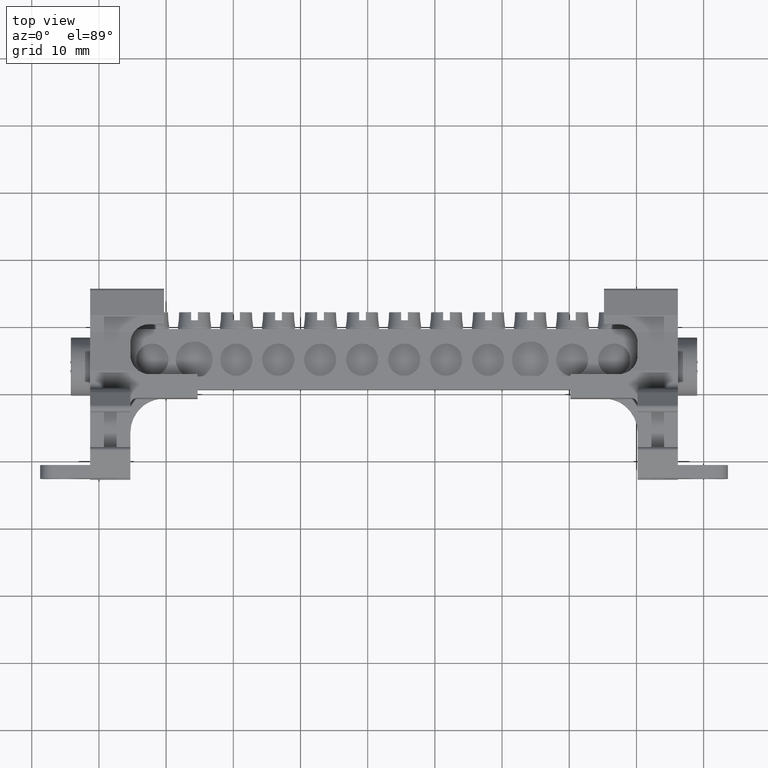
[diagram: clean part render]
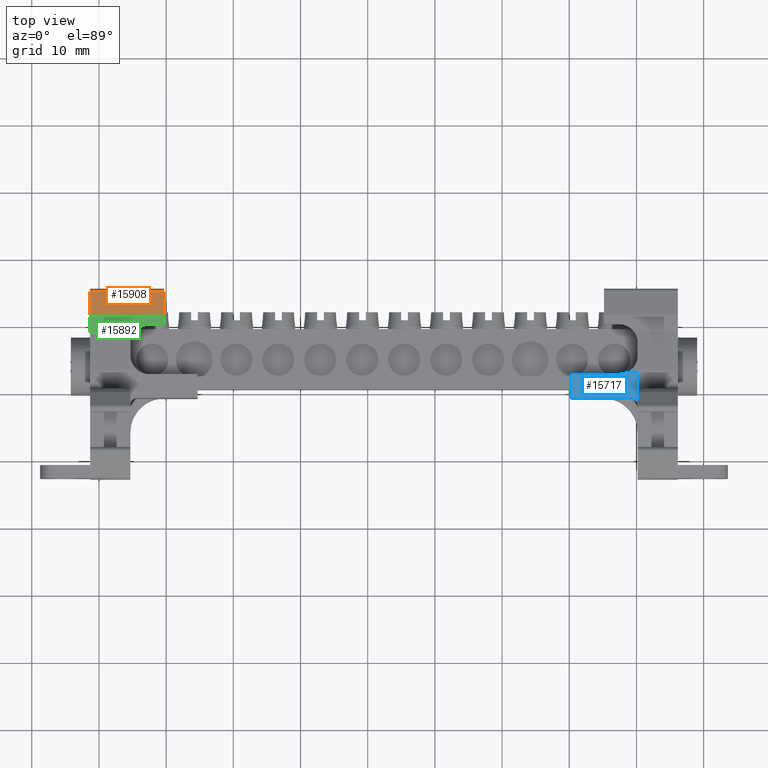
[diagram: same view with three faces highlighted in distinct colors, each labeled with its STEP entity id]
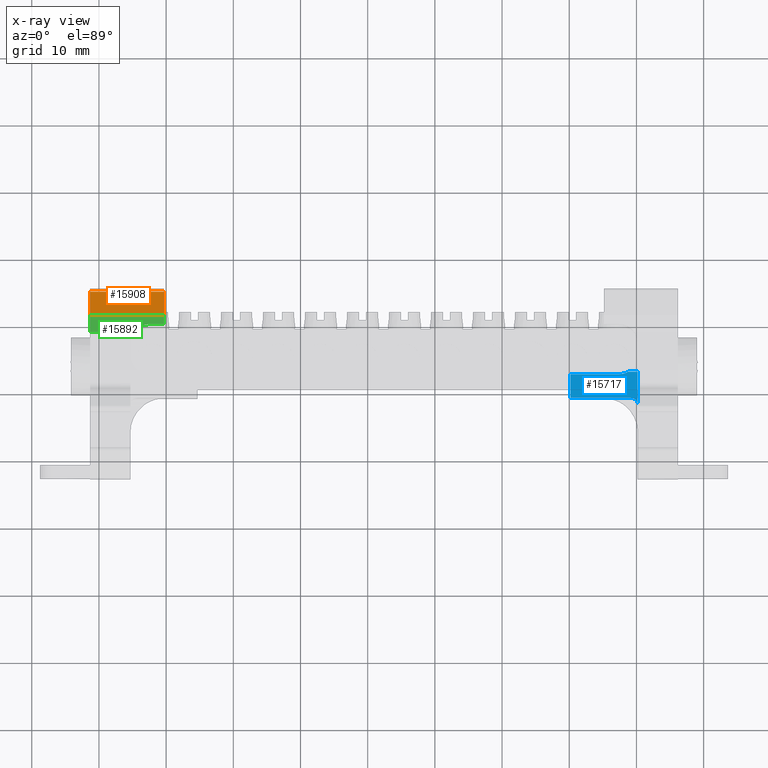
[diagram: x-ray of the same camera — body ghosted, the three highlighted faces saturated]
A machine part, top view with three faces highlighted in distinct colors.
The next image is the same camera in x-ray (body ghosted, the three faces saturated) — at least one of them is partly hidden behind the body in this view.
Their STEP definitions:

[orange] entity #15908 — the highlighted planar face has unit normal (-0, 0.2762, 0.9611).
#1280 = VECTOR ( 'NONE', #5297, 1000.000000000000000 ) ;
#1293 = VECTOR ( 'NONE', #5285, 1000.000000000000000 ) ;
#1740 = EDGE_CURVE ( 'NONE', #3983, #3984, #5250, .T. ) ;
#1748 = EDGE_CURVE ( 'NONE', #3979, #3991, #5304, .T. ) ;
#3979 = VERTEX_POINT ( 'NONE', #25395 ) ;
#3983 = VERTEX_POINT ( 'NONE', #25390 ) ;
#3984 = VERTEX_POINT ( 'NONE', #25406 ) ;
#3991 = VERTEX_POINT ( 'NONE', #25407 ) ;
#4217 = AXIS2_PLACEMENT_3D ( 'NONE', #22802, #22784, #22800 ) ;
#5250 = LINE ( 'NONE', #5277, #1293 ) ;
#5277 = CARTESIAN_POINT ( 'NONE',  ( -141.3216458143864100, -84.99019607422658900, 221.2312709053267700 ) ) ;
#5285 = DIRECTION ( 'NONE',  ( -1.000000000000000000, -1.454175152149102200E-015, -5.060196571459887600E-015 ) ) ;
#5293 = CARTESIAN_POINT ( 'NONE',  ( -141.3216458143864100, -88.47789138541249100, 222.2335481465704300 ) ) ;
#5297 = DIRECTION ( 'NONE',  ( 1.000000000000000000, 1.454175152149102200E-015, 5.060196571459887600E-015 ) ) ;
#5304 = LINE ( 'NONE', #5293, #1280 ) ;
#6095 = ORIENTED_EDGE ( 'NONE', *, *, #1748, .T. ) ;
#6102 = ORIENTED_EDGE ( 'NONE', *, *, #12886, .F. ) ;
#6109 = ORIENTED_EDGE ( 'NONE', *, *, #12932, .F. ) ;
#6149 = ORIENTED_EDGE ( 'NONE', *, *, #1740, .T. ) ;
#12886 = EDGE_CURVE ( 'NONE', #3979, #3984, #13163, .T. ) ;
#12932 = EDGE_CURVE ( 'NONE', #3983, #3991, #13331, .T. ) ;
#13163 = LINE ( 'NONE', #13176, #25936 ) ;
#13176 = CARTESIAN_POINT ( 'NONE',  ( -141.3216458143864100, -88.47789138541244800, 222.2335481465706000 ) ) ;
#13192 = DIRECTION ( 'NONE',  ( -1.529715931475186800E-014, 0.9611011415393202500, -0.2761966613335790100 ) ) ;
#13315 = CARTESIAN_POINT ( 'NONE',  ( -130.3216458143867000, -84.99019607422657400, 221.2312709053268000 ) ) ;
#13331 = LINE ( 'NONE', #13315, #26000 ) ;
#13660 = DIRECTION ( 'NONE',  ( 2.294573897212869500E-014, -0.9611011415393193600, 0.2761966613335820600 ) ) ;
#15908 = ADVANCED_FACE ( 'NONE', ( #22729 ), #22739, .T. ) ;
#17276 = EDGE_LOOP ( 'NONE', ( #6095, #6109, #6149, #6102 ) ) ;
#22729 = FACE_OUTER_BOUND ( 'NONE', #17276, .T. ) ;
#22739 = PLANE ( 'NONE',  #4217 ) ;
#22784 = DIRECTION ( 'NONE',  ( -5.264999023261283800E-015, 0.2761966613335374900, 0.9611011415393321300 ) ) ;
#22800 = DIRECTION ( 'NONE',  ( 0.0000000000000000000, -0.9611011415393320200, 0.2761966613335374300 ) ) ;
#22802 = CARTESIAN_POINT ( 'NONE',  ( -141.3216458143864100, -90.08889270818345100, 222.6965100217801400 ) ) ;
#25390 = CARTESIAN_POINT ( 'NONE',  ( -130.3216458143866700, -84.99019607422668800, 221.2312709053268500 ) ) ;
#25395 = CARTESIAN_POINT ( 'NONE',  ( -141.3216458143864100, -88.47789138541266100, 222.2335481465706000 ) ) ;
#25406 = CARTESIAN_POINT ( 'NONE',  ( -141.3216458143864400, -84.99019607422666000, 221.2312709053268000 ) ) ;
#25407 = CARTESIAN_POINT ( 'NONE',  ( -130.3216458143866100, -88.47789138541239100, 222.2335481465706000 ) ) ;
#25936 = VECTOR ( 'NONE', #13192, 999.9999999999998900 ) ;
#26000 = VECTOR ( 'NONE', #13660, 999.9999999999998900 ) ;

[blue] entity #15717 — the highlighted planar face has unit normal (-0, 0, 1).
#1562 = VECTOR ( 'NONE', #14304, 1000.000000000000000 ) ;
#2247 = ORIENTED_EDGE ( 'NONE', *, *, #12446, .T. ) ;
#2257 = ORIENTED_EDGE ( 'NONE', *, *, #12408, .T. ) ;
#2266 = ORIENTED_EDGE ( 'NONE', *, *, #12502, .T. ) ;
#2272 = ORIENTED_EDGE ( 'NONE', *, *, #12373, .T. ) ;
#2282 = ORIENTED_EDGE ( 'NONE', *, *, #12539, .T. ) ;
#2286 = ORIENTED_EDGE ( 'NONE', *, *, #8591, .T. ) ;
#2288 = ORIENTED_EDGE ( 'NONE', *, *, #12486, .T. ) ;
#2303 = ORIENTED_EDGE ( 'NONE', *, *, #12545, .F. ) ;
#3601 = VERTEX_POINT ( 'NONE', #5862 ) ;
#3911 = VERTEX_POINT ( 'NONE', #25338 ) ;
#3963 = VERTEX_POINT ( 'NONE', #25363 ) ;
#4594 = AXIS2_PLACEMENT_3D ( 'NONE', #13332, #19893, #19885 ) ;
#5862 = CARTESIAN_POINT ( 'NONE',  ( -59.82164581438650700, -98.69266773623324700, 221.2795482728010700 ) ) ;
#6606 = VERTEX_POINT ( 'NONE', #22434 ) ;
#6652 = VERTEX_POINT ( 'NONE', #22482 ) ;
#6659 = VERTEX_POINT ( 'NONE', #22508 ) ;
#6694 = VERTEX_POINT ( 'NONE', #22526 ) ;
#6698 = VERTEX_POINT ( 'NONE', #22502 ) ;
#8591 = EDGE_CURVE ( 'NONE', #3963, #3911, #14276, .T. ) ;
#10647 = DIRECTION ( 'NONE',  ( -0.0000000000000000000, 1.000000000000000000, -1.383348239789809800E-013 ) ) ;
#10676 = LINE ( 'NONE', #10694, #16175 ) ;
#10694 = CARTESIAN_POINT ( 'NONE',  ( -59.82164581438650700, -103.1584416647072000, 221.2795482728016900 ) ) ;
#10726 = CARTESIAN_POINT ( 'NONE',  ( -137.4477258143864200, -97.27597067425378400, 221.2795482728007000 ) ) ;
#10748 = LINE ( 'NONE', #10726, #16153 ) ;
#10756 = DIRECTION ( 'NONE',  ( -1.000000000000000000, -3.254029360473868200E-028, -2.352285033426070200E-015 ) ) ;
#10912 = CARTESIAN_POINT ( 'NONE',  ( -69.82164581438650000, -98.58637067425429700, 221.2795482728012400 ) ) ;
#10939 = DIRECTION ( 'NONE',  ( 1.000000000000000000, 3.254029360473868200E-028, 2.352285033426070200E-015 ) ) ;
#10944 = LINE ( 'NONE', #10912, #16237 ) ;
#10952 = DIRECTION ( 'NONE',  ( -1.100161628464490100E-014, 1.000000000000000000, -0.0000000000000000000 ) ) ;
#10956 = CARTESIAN_POINT ( 'NONE',  ( -137.4477258143864200, -100.8039706742540000, 221.2795482728011500 ) ) ;
#10971 = LINE ( 'NONE', #10956, #16236 ) ;
#11883 = DIRECTION ( 'NONE',  ( 0.0000000000000000000, -1.000000000000000000, 1.376764663473663000E-013 ) ) ;
#11898 = CARTESIAN_POINT ( 'NONE',  ( -60.82964581438649500, -101.8119706742540100, 221.2795482728016300 ) ) ;
#11933 = DIRECTION ( 'NONE',  ( 2.352285033426080400E-015, -1.387778780781406000E-013, -1.000000000000000000 ) ) ;
#12107 = LINE ( 'NONE', #12109, #16744 ) ;
#12109 = CARTESIAN_POINT ( 'NONE',  ( -59.82164581438647800, -103.1584416647072000, 221.2795482728016900 ) ) ;
#12162 = DIRECTION ( 'NONE',  ( -0.0000000000000000000, 1.000000000000000000, -1.383348239789809800E-013 ) ) ;
#12227 = CARTESIAN_POINT ( 'NONE',  ( -62.59364581438660500, -94.50397067425380700, 221.2795482728007200 ) ) ;
#12229 = DIRECTION ( 'NONE',  ( 2.352285033426075300E-015, -1.383858749693143900E-013, -1.000000000000000000 ) ) ;
#12248 = DIRECTION ( 'NONE',  ( 0.0000000000000000000, 1.000000000000000000, -1.401796748264088300E-013 ) ) ;
#12373 = EDGE_CURVE ( 'NONE', #6659, #6606, #16702, .T. ) ;
#12408 = EDGE_CURVE ( 'NONE', #6606, #3601, #12107, .T. ) ;
#12446 = EDGE_CURVE ( 'NONE', #3911, #6698, #16809, .T. ) ;
#12486 = EDGE_CURVE ( 'NONE', #3601, #3963, #10676, .T. ) ;
#12502 = EDGE_CURVE ( 'NONE', #6698, #6652, #10748, .T. ) ;
#12539 = EDGE_CURVE ( 'NONE', #6694, #6659, #10971, .T. ) ;
#12545 = EDGE_CURVE ( 'NONE', #6694, #6652, #10944, .T. ) ;
#13320 = PLANE ( 'NONE',  #4594 ) ;
#13332 = CARTESIAN_POINT ( 'NONE',  ( -137.4477258143864200, -103.1584416647072000, 221.2795482728014900 ) ) ;
#14276 = LINE ( 'NONE', #14288, #1562 ) ;
#14288 = CARTESIAN_POINT ( 'NONE',  ( -53.82164581438652100, -96.90097286027881300, 221.2795482728010100 ) ) ;
#14304 = DIRECTION ( 'NONE',  ( -1.000000000000000000, -1.109077728002170700E-014, -1.955555613115929000E-015 ) ) ;
#15717 = ADVANCED_FACE ( 'NONE', ( #18970 ), #13320, .T. ) ;
#16153 = VECTOR ( 'NONE', #10756, 1000.000000000000000 ) ;
#16175 = VECTOR ( 'NONE', #10647, 1000.000000000000000 ) ;
#16236 = VECTOR ( 'NONE', #10939, 1000.000000000000000 ) ;
#16237 = VECTOR ( 'NONE', #10952, 1000.000000000000000 ) ;
#16685 = AXIS2_PLACEMENT_3D ( 'NONE', #11898, #11933, #11883 ) ;
#16702 = CIRCLE ( 'NONE', #16685, 1.007999999999995100 ) ;
#16744 = VECTOR ( 'NONE', #12162, 1000.000000000000000 ) ;
#16787 = AXIS2_PLACEMENT_3D ( 'NONE', #12227, #12229, #12248 ) ;
#16809 = CIRCLE ( 'NONE', #16787, 2.771999999999996700 ) ;
#18970 = FACE_OUTER_BOUND ( 'NONE', #21250, .T. ) ;
#19885 = DIRECTION ( 'NONE',  ( 0.0000000000000000000, -1.000000000000000000, 1.383348239789809800E-013 ) ) ;
#19893 = DIRECTION ( 'NONE',  ( -2.352285033426070200E-015, 1.383348239789809800E-013, 1.000000000000000000 ) ) ;
#21250 = EDGE_LOOP ( 'NONE', ( #2282, #2272, #2257, #2288, #2286, #2247, #2266, #2303 ) ) ;
#22434 = CARTESIAN_POINT ( 'NONE',  ( -59.82164581438647800, -101.8119706742540100, 221.2795482728015500 ) ) ;
#22482 = CARTESIAN_POINT ( 'NONE',  ( -69.82164581438651400, -97.27597067425385500, 221.2795482728010700 ) ) ;
#22502 = CARTESIAN_POINT ( 'NONE',  ( -62.59364581438657600, -97.27597067425378400, 221.2795482728010100 ) ) ;
#22508 = CARTESIAN_POINT ( 'NONE',  ( -60.82964581438647400, -100.8039706742547000, 221.2795482728014900 ) ) ;
#22526 = CARTESIAN_POINT ( 'NONE',  ( -69.82164581438648600, -100.8039706742543900, 221.2795482728012600 ) ) ;
#25338 = CARTESIAN_POINT ( 'NONE',  ( -61.20139421349295400, -96.90097286027891200, 221.2795482728010100 ) ) ;
#25363 = CARTESIAN_POINT ( 'NONE',  ( -59.82164581438650700, -96.90097286027889800, 221.2795482728009500 ) ) ;

[green] entity #15892 — the highlighted planar face has unit normal (-0, -0, 1).
#4020 = VERTEX_POINT ( 'NONE', #25455 ) ;
#4247 = AXIS2_PLACEMENT_3D ( 'NONE', #19697, #19788, #19714 ) ;
#6147 = ORIENTED_EDGE ( 'NONE', *, *, #12943, .F. ) ;
#6178 = ORIENTED_EDGE ( 'NONE', *, *, #12910, .F. ) ;
#6180 = ORIENTED_EDGE ( 'NONE', *, *, #12949, .T. ) ;
#6190 = ORIENTED_EDGE ( 'NONE', *, *, #12930, .F. ) ;
#6191 = ORIENTED_EDGE ( 'NONE', *, *, #12124, .T. ) ;
#6240 = ORIENTED_EDGE ( 'NONE', *, *, #12990, .T. ) ;
#6374 = VERTEX_POINT ( 'NONE', #25540 ) ;
#6377 = VERTEX_POINT ( 'NONE', #25594 ) ;
#6392 = VERTEX_POINT ( 'NONE', #25573 ) ;
#6441 = VERTEX_POINT ( 'NONE', #25601 ) ;
#7478 = CARTESIAN_POINT ( 'NONE',  ( -141.3216458143864100, -88.53786190133415300, 221.2335478918341800 ) ) ;
#7877 = CARTESIAN_POINT ( 'NONE',  ( -141.3216458143862200, -88.53786190691566600, 221.2335479234891400 ) ) ;
#7883 = DIRECTION ( 'NONE',  ( -1.000000000000000000, -0.0000000000000000000, -2.308216128895730200E-015 ) ) ;
#7884 = LINE ( 'NONE', #7877, #16643 ) ;
#10359 = VERTEX_POINT ( 'NONE', #7478 ) ;
#12124 = EDGE_CURVE ( 'NONE', #4020, #10359, #7884, .T. ) ;
#12910 = EDGE_CURVE ( 'NONE', #4020, #6392, #13276, .T. ) ;
#12930 = EDGE_CURVE ( 'NONE', #6377, #6374, #13328, .T. ) ;
#12943 = EDGE_CURVE ( 'NONE', #6374, #10359, #18239, .T. ) ;
#12949 = EDGE_CURVE ( 'NONE', #6441, #6392, #18279, .T. ) ;
#12990 = EDGE_CURVE ( 'NONE', #6377, #6441, #26046, .T. ) ;
#13276 = LINE ( 'NONE', #13286, #25919 ) ;
#13282 = DIRECTION ( 'NONE',  ( 2.204215991422325000E-014, -1.000000000000000000, -0.0000000000000000000 ) ) ;
#13286 = CARTESIAN_POINT ( 'NONE',  ( -130.3216458143867000, -85.03786109325295700, 221.2335479234891700 ) ) ;
#13314 = CARTESIAN_POINT ( 'NONE',  ( -141.3216458143864100, -91.00339849896569400, 221.2335478221932000 ) ) ;
#13328 = LINE ( 'NONE', #13314, #25977 ) ;
#13329 = DIRECTION ( 'NONE',  ( -1.000000000000000000, -7.273375105044434700E-016, -4.124932216576806900E-015 ) ) ;
#15892 = ADVANCED_FACE ( 'NONE', ( #19716 ), #19754, .T. ) ;
#16643 = VECTOR ( 'NONE', #7883, 1000.000000000000000 ) ;
#17296 = EDGE_LOOP ( 'NONE', ( #6147, #6190, #6240, #6180, #6178, #6191 ) ) ;
#18215 = CARTESIAN_POINT ( 'NONE',  ( -141.3216458143863000, -99.69110807736454700, 221.2335478601791900 ) ) ;
#18216 = DIRECTION ( 'NONE',  ( -1.092332566256044200E-014, 1.000000000000000000, -0.0000000000000000000 ) ) ;
#18239 = LINE ( 'NONE', #18215, #25999 ) ;
#18264 = DIRECTION ( 'NONE',  ( 1.000000000000000000, 2.204215991422325000E-014, -0.0000000000000000000 ) ) ;
#18279 = LINE ( 'NONE', #18284, #25957 ) ;
#18284 = CARTESIAN_POINT ( 'NONE',  ( -130.3216458143866100, -89.83786109323455100, 221.2335478728412000 ) ) ;
#18388 = CARTESIAN_POINT ( 'NONE',  ( -132.5516458143864000, -92.60786109323454700, 221.2335478221932300 ) ) ;
#18404 = DIRECTION ( 'NONE',  ( 2.359837107700700200E-015, 8.323201445548778900E-032, -1.000000000000000000 ) ) ;
#18416 = DIRECTION ( 'NONE',  ( 1.000000000000000000, -2.004012679828806300E-014, 0.0000000000000000000 ) ) ;
#19697 = CARTESIAN_POINT ( 'NONE',  ( -141.3216458143862200, -99.83610807736455700, 221.2335479234891400 ) ) ;
#19714 = DIRECTION ( 'NONE',  ( 1.000000000000000000, 0.0000000000000000000, 2.308216128895730200E-015 ) ) ;
#19716 = FACE_OUTER_BOUND ( 'NONE', #17296, .T. ) ;
#19754 = PLANE ( 'NONE',  #4247 ) ;
#19788 = DIRECTION ( 'NONE',  ( -2.308216128895730200E-015, -2.450406975310975100E-029, 1.000000000000000000 ) ) ;
#25455 = CARTESIAN_POINT ( 'NONE',  ( -130.3216458143866100, -88.53786190542723500, 221.2335479150478100 ) ) ;
#25540 = CARTESIAN_POINT ( 'NONE',  ( -141.3216458143863900, -91.00339860668022100, 221.2335478411862100 ) ) ;
#25573 = CARTESIAN_POINT ( 'NONE',  ( -130.3216458143866100, -89.83786109323455100, 221.2335478897238700 ) ) ;
#25594 = CARTESIAN_POINT ( 'NONE',  ( -134.8096537381086100, -91.00339849896570900, 221.2335478221932300 ) ) ;
#25601 = CARTESIAN_POINT ( 'NONE',  ( -132.5516458143864900, -89.83786109323459400, 221.2335478475172000 ) ) ;
#25919 = VECTOR ( 'NONE', #13282, 1000.000000000000000 ) ;
#25957 = VECTOR ( 'NONE', #18264, 1000.000000000000000 ) ;
#25977 = VECTOR ( 'NONE', #13329, 1000.000000000000000 ) ;
#25999 = VECTOR ( 'NONE', #18216, 1000.000000000000000 ) ;
#26017 = AXIS2_PLACEMENT_3D ( 'NONE', #18388, #18404, #18416 ) ;
#26046 = CIRCLE ( 'NONE', #26017, 2.769999999999994700 ) ;